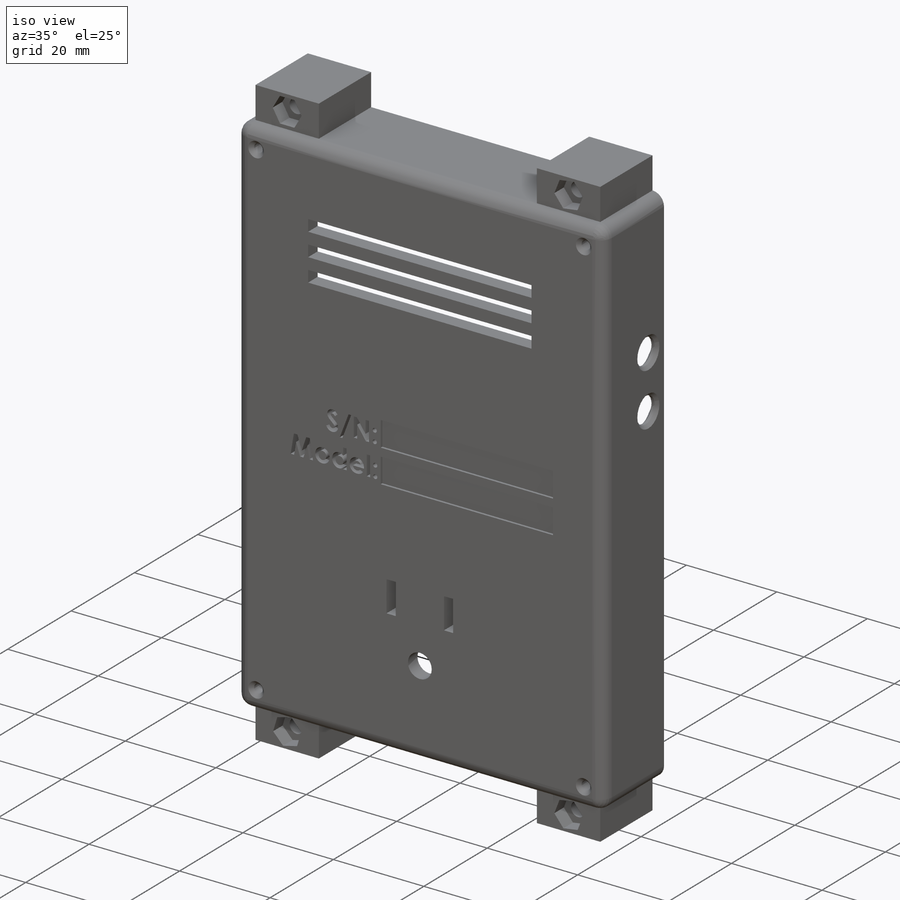
[diagram: iso view]
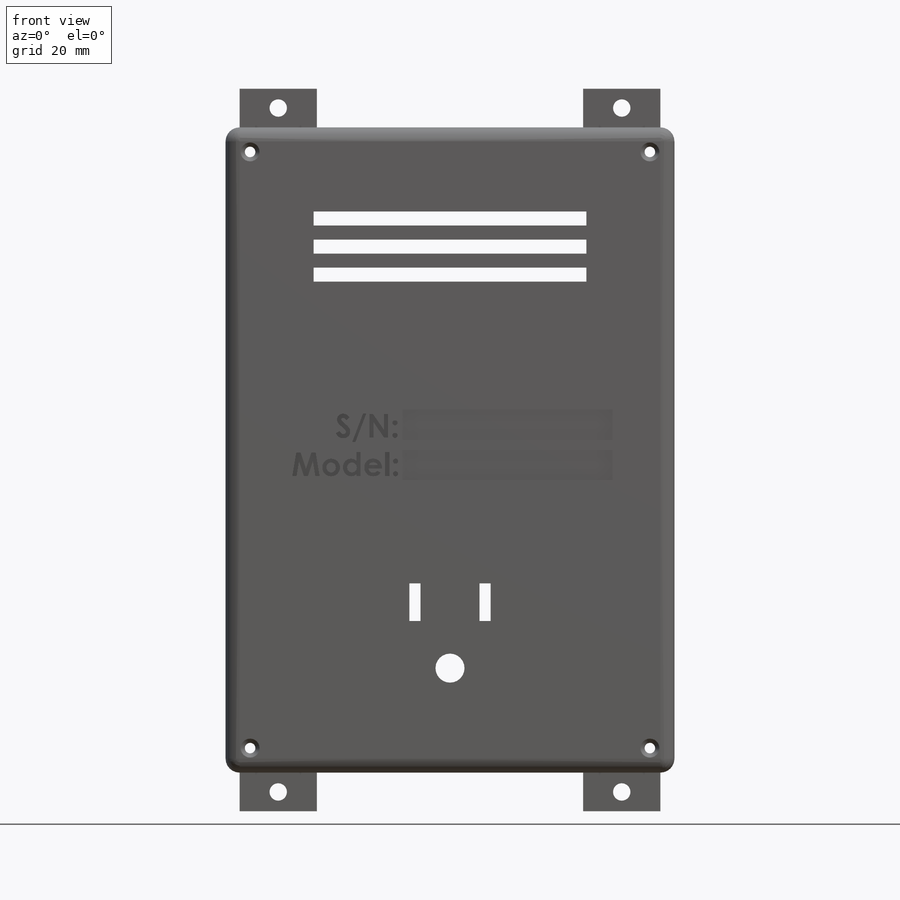
[diagram: front view]
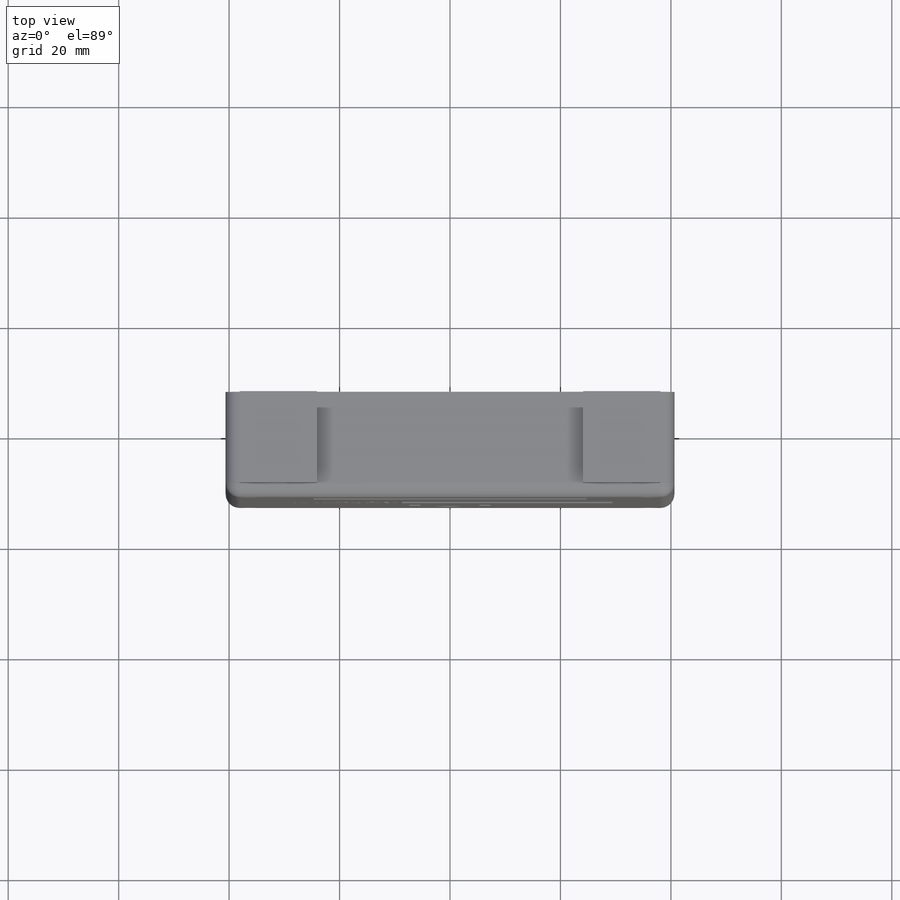
[diagram: top view]
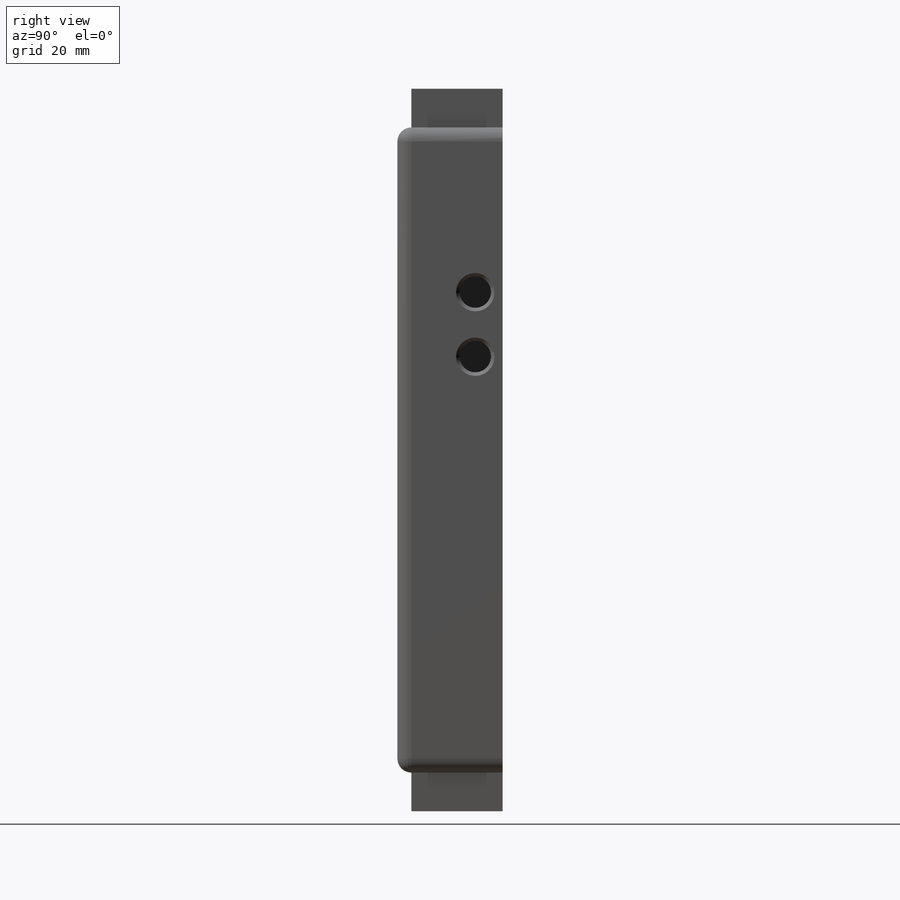
[diagram: right view]
SOLIDWORKS PART (.sldprt)
format: sldprt  version: not decoded by parser v0  size: 726,016 bytes
history: native  units: mm
features: sketch x18, cut_extrude x13, fillet x9, extrude x5, plane x5, chamfer x2, material x1 (+12 scaffold rows collapsed)
feature tree (65):
  scaffold x12  (default folders/planes/origin — collapsed)
  material  "Material <not specified>"
  sketch  "Sketch4"  dims[c1.D1=5.08mm c1.D2=1.397mm c2.D1=~5.015488mm c2.D2=1.905mm c3.D1=~4.722614mm c3.D2=1.905mm c4.D1=~7.705187mm c4.D2=1.905mm c5.D1=~4.722614mm c5.D2=1.905mm]
  sketch  "Sketch5"  dims[D1=81.28mm D2=116.84mm D3=10.16mm D4=10.16mm]
  sketch  "Sketch8"  dims[D1=1.905mm]
  extrude  "Case"  Depth=12.7mm
  cut_extrude  "Case Cut"  Depth=9.7mm
  plane  "Inside Back Plane"  Offset=0mm
  sketch  "Sketch11"  dims[D1=1.651mm]
  sketch  "Sketch13"  dims[c1.D1=4.318mm c1.D2=3.81mm c1.D3=3.81mm c1.D4=3.81mm c1.D5=3.81mm c2.D2=3.556mm c2.D3=5.334mm c2.D4=3.556mm c2.D5=20.2438mm c3.D3=2.54mm c3.D2=2.794mm c4.D3=3.175mm c4.D4=3.175mm c4.D5=2.794mm c4.D6=~12.046322mm]
  extrude  "Board Mount"  Depth=0.0001mm
  cut_extrude  "Board Mount Screw Cut"  Depth=5.588mm
  cut_extrude  "FacePlate Screw Cut"  [1 undecoded]
  sketch  "Sketch14"  dims[c1.D4=5.2578mm c1.D6=4.7498mm c1.D1=2.032mm c1.D2=6.8072mm c1.D3=12.7mm c1.D5=11.938mm c2.D6=11.938mm]
  plane  "Left Side Plane"  Offset=0mm
  sketch  "Sketch18"  dims[c1.D2=5.688mm c1.D1=5.588mm c1.D3=5.588mm c2.D1=6.985mm c2.D3=0.5mm c2.D4=0.5mm c2.D5=6.3754mm c2.D6=11.684mm c3.D3=11.176mm c3.D4=11.684mm c4.D3=22.86mm c4.D1=22.86mm c5.D3=11.1mm]
  cut_extrude  "Outlet Cut"  [1 undecoded]
  plane  "Top Back Plane"  Offset=0mm
  sketch  "Sketch24"  dims[D1=81.28mm D2=116.84mm D3=10.16mm D4=10.16mm]
  extrude  "Boss-Extrude1"  Depth=6.35mm
  sketch  "Sketch26"  dims[c1.D1=5.08mm c1.D2=1.397mm c2.D1=~5.015488mm c2.D2=1.905mm c3.D1=~4.722614mm c3.D2=1.905mm c4.D1=~7.705187mm c4.D2=1.905mm c5.D1=~4.722614mm c5.D2=1.905mm]
  cut_extrude  "Cut-Extrude1"  Depth=6.35mm
  fillet  "Fillet11"  Radius=2.54mm
  fillet  "Fillet12"  Radius=2.54mm
  fillet  "Fillet13"  Radius=2.54mm
  sketch  "Sketch28"  dims[D1=1.905mm]
  cut_extrude  "Cut-Extrude3"  [1 undecoded]
  fillet  "Fillet14"  Radius=2.54mm
  plane  "Plane1"  Offset=0mm
  sketch  "Sketch30"  dims[c1.D1=81.28mm c1.D2=116.84mm c1.D3=10.16mm c1.D4=10.16mm c2.D1=1.016mm]
  cut_extrude  "Cut-Extrude4"  Depth=2.032mm
  fillet  "Fillet15"  Radius=2.54mm
  fillet  "Fillet16"  Radius=2.54mm
  fillet  "Fillet17"  Radius=2.54mm
  fillet  "Fillet18"  Radius=2.54mm
  plane  "Plane2"  Offset=0mm
  cut_extrude  "Cut-Extrude5"  Depth=2.54mm
  chamfer  "Chamfer6"  Distance=0.635mm Angle=45deg
  fillet  "Fillet19"  Radius=2.54mm
  chamfer  "Chamfer7"  Distance=0.762mm Angle=45deg
  sketch  "Sketch31"
  cut_extrude  "Cut-Extrude6"  Depth=0.508mm
  sketch  "Sketch32"
  cut_extrude  "Cut-Extrude7"  Depth=1.905mm
  sketch  "Sketch33"  dims[D1=2.54mm D2=2.54mm D3=2.54mm D4=12.7mm]
  cut_extrude  "Cut-Extrude8"  Depth=27.94mm
  sketch  "Sketch34"  dims[D1=14.0mm]
  extrude  "Boss-Extrude2"  Depth=7mm
  sketch  "Sketch35"  dims[D1=14.0mm]
  extrude  "Boss-Extrude3"  Depth=7mm
  sketch  "Sketch36"  dims[D1=3.15mm]
  cut_extrude  "Cut-Extrude9"  [1 undecoded]
  sketch  "Sketch38"  dims[D1=5.52mm]
  cut_extrude  "Cut-Extrude10"  Depth=3mm
decode coverage: 41 of 47 modeling features carry decoded parameters
note: ~ marks probable driven/reference dimensions
note: 4 parameter values undecoded
summary: no parameter record found for 4 features
note: suppression state not decoded; provenance and decode notes live in map.json
